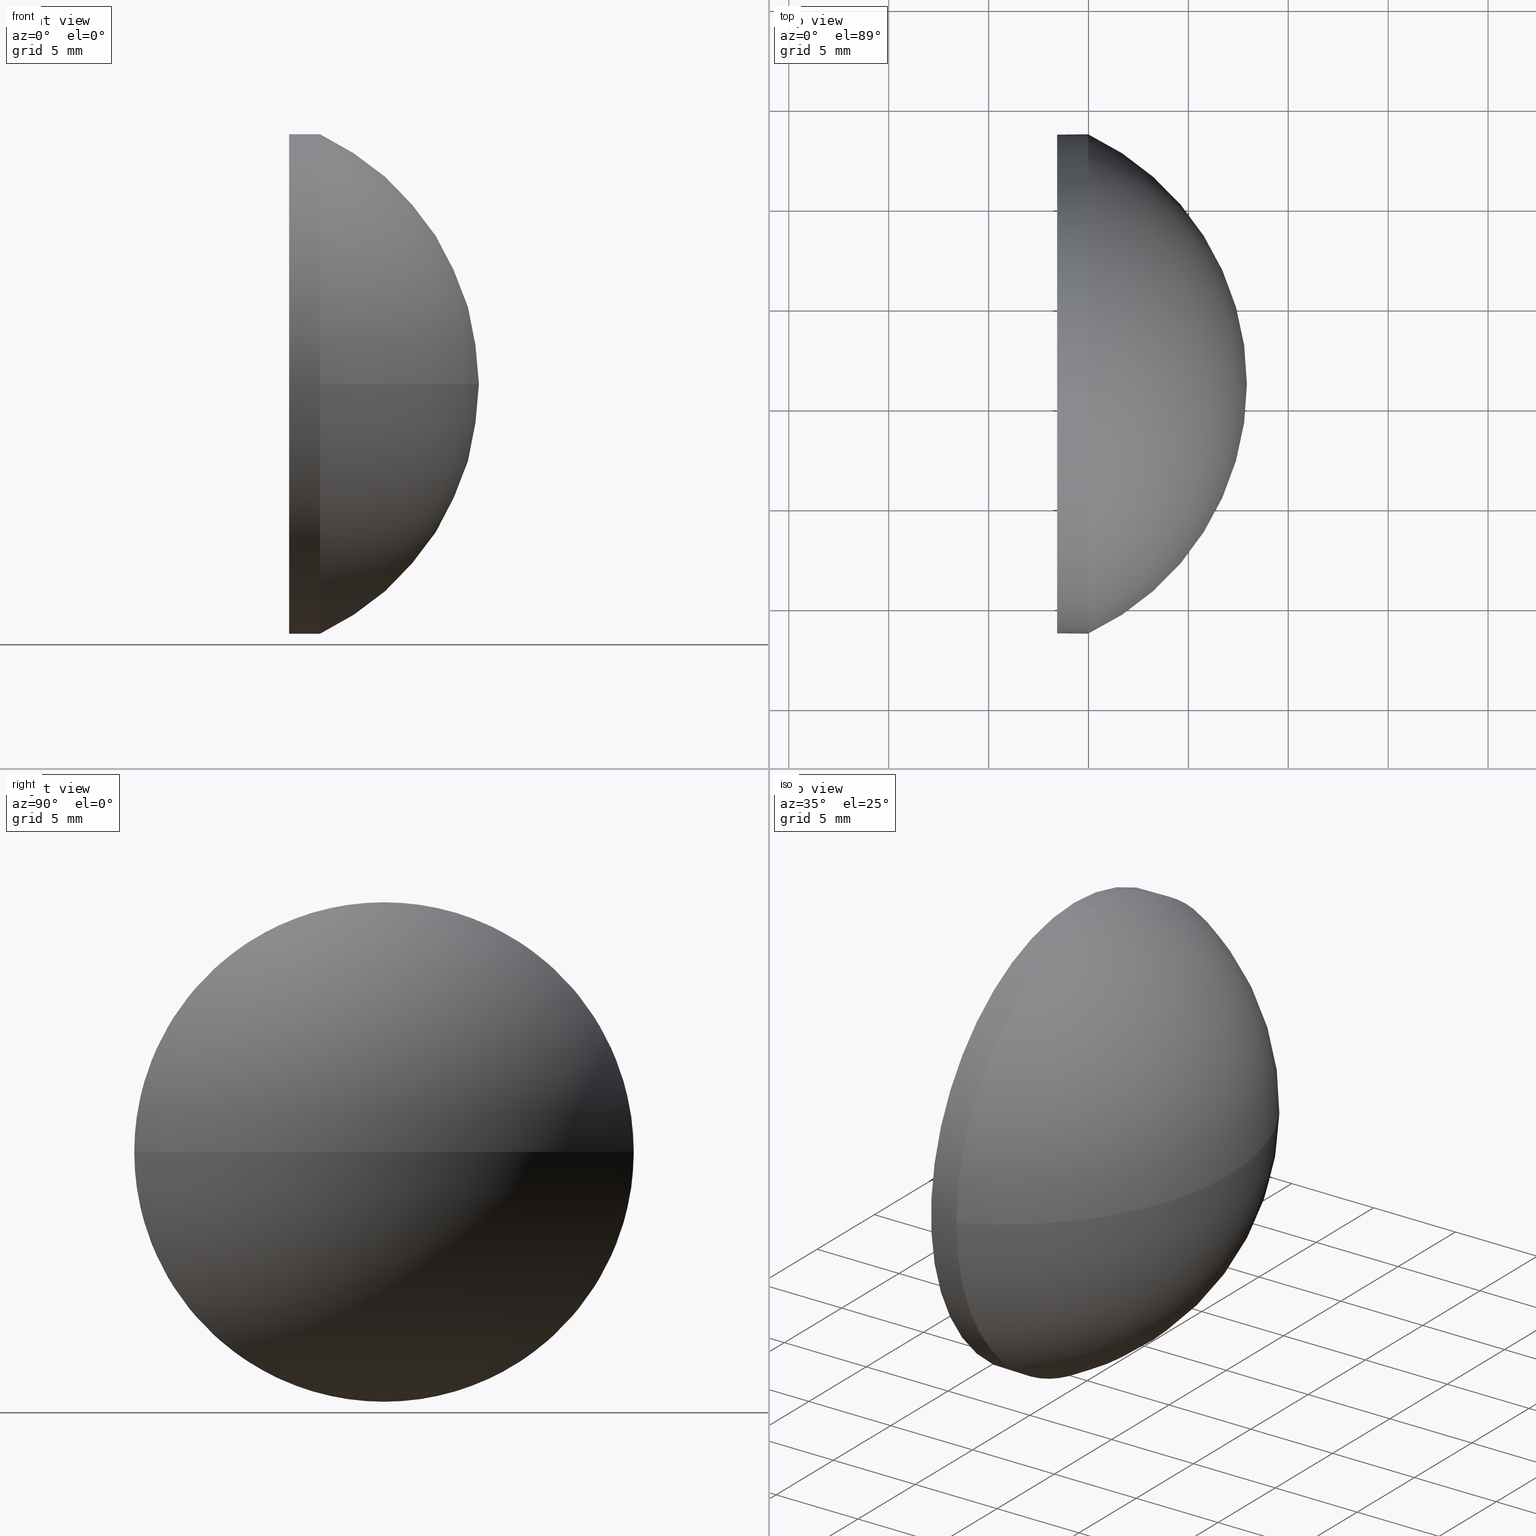
[diagram: canonical four-view strip — front | top / right | iso, engineering-drawing reading convention]
A machine part, canonical four-view strip (front | top / right | iso — engineering-drawing reading convention). The complete STEP part file that produces these views, byte-faithful:
ISO-10303-21;
HEADER;
FILE_DESCRIPTION (( 'STEP AP214' ),
    '1' );
FILE_NAME ('100209.STEP',
    '2019-05-23T06:58:59',
    ( '' ),
    ( '' ),
    'SwSTEP 2.0',
    'SolidWorks 2016',
    '' );
FILE_SCHEMA (( 'AUTOMOTIVE_DESIGN' ));
ENDSEC;

DATA;
#1 = CIRCLE ( 'NONE', #90, 13.80204402515722300 ) ;
#2 =( NAMED_UNIT ( * ) SI_UNIT ( $, .STERADIAN. ) SOLID_ANGLE_UNIT ( ) );
#3 = CARTESIAN_POINT ( 'NONE',  ( 0.0000000000000000000, 0.0000000000000000000, 0.0000000000000000000 ) ) ;
#4 = DIRECTION ( 'NONE',  ( 0.0000000000000000000, 0.0000000000000000000, 1.000000000000000000 ) ) ;
#5 = PRESENTATION_LAYER_ASSIGNMENT (  '', '', ( #23 ) ) ;
#6 = ORIENTED_EDGE ( 'NONE', *, *, #127, .F. ) ;
#7 = CARTESIAN_POINT ( 'NONE',  ( 439.1267200903624800, -33.87662092568371700, 0.0000000000000000000 ) ) ;
#8 = ADVANCED_BREP_SHAPE_REPRESENTATION ( '100209', ( #160, #163 ), #38 ) ;
#9 = DIRECTION ( 'NONE',  ( 0.0000000000000000000, 1.000000000000000000, 0.0000000000000000000 ) ) ;
#10 = VERTEX_POINT ( 'NONE', #122 ) ;
#11 = ORIENTED_EDGE ( 'NONE', *, *, #55, .F. ) ;
#12 = UNCERTAINTY_MEASURE_WITH_UNIT (LENGTH_MEASURE( 1.000000000000000100E-005 ), #86, 'distance_accuracy_value', 'NONE');
#13 =( NAMED_UNIT ( * ) PLANE_ANGLE_UNIT ( ) SI_UNIT ( $, .RADIAN. ) );
#14 = EDGE_CURVE ( 'NONE', #10, #175, #37, .T. ) ;
#15 = AXIS2_PLACEMENT_3D ( 'NONE', #68, #124, #31 ) ;
#16 = SURFACE_STYLE_USAGE ( .BOTH. , #103 ) ;
#17 = DIRECTION ( 'NONE',  ( 0.0000000000000000000, 0.0000000000000000000, 1.000000000000000000 ) ) ;
#18 = DIRECTION ( 'NONE',  ( 1.000000000000000000, 0.0000000000000000000, 0.0000000000000000000 ) ) ;
#19 = EDGE_CURVE ( 'NONE', #39, #129, #158, .T. ) ;
#20 = DIRECTION ( 'NONE',  ( -0.0000000000000000000, 0.0000000000000000000, 1.000000000000000000 ) ) ;
#21 = CARTESIAN_POINT ( 'NONE',  ( 444.9787641155197100, -33.87662092568371000, -12.50000000000000400 ) ) ;
#22 = ADVANCED_FACE ( 'NONE', ( #141 ), #29, .T. ) ;
#23 = STYLED_ITEM ( 'NONE', ( #181 ), #160 ) ;
#24 =( GEOMETRIC_REPRESENTATION_CONTEXT ( 3 ) GLOBAL_UNCERTAINTY_ASSIGNED_CONTEXT ( ( #73 ) ) GLOBAL_UNIT_ASSIGNED_CONTEXT ( ( #121, #105, #2 ) ) REPRESENTATION_CONTEXT ( 'NONE', 'WORKASPACE' ) );
#25 = PRESENTATION_STYLE_ASSIGNMENT (( #16 ) ) ;
#26 = CARTESIAN_POINT ( 'NONE',  ( 439.1267200903624800, -33.87662092568371700, 0.0000000000000000000 ) ) ;
#27 = COLOUR_RGB ( '',1.000000000000000000, 1.000000000000000000, 1.000000000000000000 ) ;
#28 = ORIENTED_EDGE ( 'NONE', *, *, #130, .F. ) ;
#29 = SPHERICAL_SURFACE ( 'NONE', #177, 13.80204402515724000 ) ;
#30 = APPLICATION_PROTOCOL_DEFINITION ( 'draft international standard', 'automotive_design', 1998, #123 ) ;
#31 = DIRECTION ( 'NONE',  ( 0.0000000000000000000, 0.0000000000000000000, 1.000000000000000000 ) ) ;
#32 = CIRCLE ( 'NONE', #15, 12.50000000000000400 ) ;
#33 = EDGE_LOOP ( 'NONE', ( #81, #89 ) ) ;
#34 = CARTESIAN_POINT ( 'NONE',  ( 443.4287641155197000, -33.87662092568371000, 0.0000000000000000000 ) ) ;
#35 = EDGE_CURVE ( 'NONE', #74, #85, #1, .T. ) ;
#36 = SPHERICAL_SURFACE ( 'NONE', #167, 13.80204402515724000 ) ;
#37 = CIRCLE ( 'NONE', #47, 12.50000000000000400 ) ;
#38 =( GEOMETRIC_REPRESENTATION_CONTEXT ( 3 ) GLOBAL_UNCERTAINTY_ASSIGNED_CONTEXT ( ( #12 ) ) GLOBAL_UNIT_ASSIGNED_CONTEXT ( ( #86, #13, #101 ) ) REPRESENTATION_CONTEXT ( 'NONE', 'WORKASPACE' ) );
#39 = VERTEX_POINT ( 'NONE', #96 ) ;
#40 = LINE ( 'NONE', #65, #100 ) ;
#41 = AXIS2_PLACEMENT_3D ( 'NONE', #139, #153, #69 ) ;
#42 =( NAMED_UNIT ( * ) SI_UNIT ( $, .STERADIAN. ) SOLID_ANGLE_UNIT ( ) );
#43 = ORIENTED_EDGE ( 'NONE', *, *, #115, .F. ) ;
#44 = VECTOR ( 'NONE', #136, 1000.000000000000000 ) ;
#45 = DIRECTION ( 'NONE',  ( 1.000000000000000000, 0.0000000000000000000, 0.0000000000000000000 ) ) ;
#46 = DIRECTION ( 'NONE',  ( -1.000000000000000000, -0.0000000000000000000, -0.0000000000000000000 ) ) ;
#47 = AXIS2_PLACEMENT_3D ( 'NONE', #133, #46, #147 ) ;
#48 = VERTEX_POINT ( 'NONE', #21 ) ;
#49 = CARTESIAN_POINT ( 'NONE',  ( 444.9787641155197100, -33.87662092568371000, 0.0000000000000000000 ) ) ;
#50 = DIRECTION ( 'NONE',  ( -1.000000000000000000, -0.0000000000000000000, -0.0000000000000000000 ) ) ;
#51 = DIRECTION ( 'NONE',  ( 0.0000000000000000000, 1.000000000000000000, 1.224646799147353200E-016 ) ) ;
#52 = CARTESIAN_POINT ( 'NONE',  ( 441.3996565370827600, -33.87662092568371000, 12.50000000000000400 ) ) ;
#53 = PRODUCT ( '100209', '100209', '', ( #92 ) ) ;
#54 =( GEOMETRIC_REPRESENTATION_CONTEXT ( 3 ) GLOBAL_UNCERTAINTY_ASSIGNED_CONTEXT ( ( #84 ) ) GLOBAL_UNIT_ASSIGNED_CONTEXT ( ( #145, #170, #42 ) ) REPRESENTATION_CONTEXT ( 'NONE', 'WORKASPACE' ) );
#55 = EDGE_CURVE ( 'NONE', #129, #10, #144, .T. ) ;
#56 = ORIENTED_EDGE ( 'NONE', *, *, #55, .T. ) ;
#57 = PRODUCT_RELATED_PRODUCT_CATEGORY ( 'part', '', ( #53 ) ) ;
#58 = SURFACE_STYLE_USAGE ( .BOTH. , #119 ) ;
#59 = DIRECTION ( 'NONE',  ( 0.0000000000000000000, 1.000000000000000000, 0.0000000000000000000 ) ) ;
#60 = EDGE_CURVE ( 'NONE', #129, #85, #156, .T. ) ;
#61 = APPLICATION_PROTOCOL_DEFINITION ( 'draft international standard', 'automotive_design', 1998, #77 ) ;
#62 = AXIS2_PLACEMENT_3D ( 'NONE', #49, #150, #67 ) ;
#63 = ORIENTED_EDGE ( 'NONE', *, *, #99, .T. ) ;
#64 = PRESENTATION_LAYER_ASSIGNMENT (  '', '', ( #116 ) ) ;
#65 = CARTESIAN_POINT ( 'NONE',  ( 441.3996565370827600, -33.87662092568371000, -12.50000000000000400 ) ) ;
#66 = FACE_OUTER_BOUND ( 'NONE', #71, .T. ) ;
#67 = DIRECTION ( 'NONE',  ( 0.0000000000000000000, 0.0000000000000000000, 1.000000000000000000 ) ) ;
#68 = CARTESIAN_POINT ( 'NONE',  ( 444.9787641155197100, -33.87662092568371000, 0.0000000000000000000 ) ) ;
#69 = DIRECTION ( 'NONE',  ( 0.0000000000000000000, 0.0000000000000000000, 1.000000000000000000 ) ) ;
#70 = CIRCLE ( 'NONE', #178, 12.50000000000000400 ) ;
#71 = EDGE_LOOP ( 'NONE', ( #114, #154, #179, #56, #6 ) ) ;
#72 = SURFACE_STYLE_FILL_AREA ( #169 ) ;
#73 = UNCERTAINTY_MEASURE_WITH_UNIT (LENGTH_MEASURE( 1.000000000000000100E-005 ), #121, 'distance_accuracy_value', 'NONE');
#74 = VERTEX_POINT ( 'NONE', #82 ) ;
#75 = PRODUCT_DEFINITION_SHAPE ( 'NONE', 'NONE',  #88 ) ;
#76 = FACE_OUTER_BOUND ( 'NONE', #182, .T. ) ;
#77 = APPLICATION_CONTEXT ( 'automotive_design' ) ;
#78 = CLOSED_SHELL ( 'NONE', ( #142, #22, #166, #138, #97 ) ) ;
#79 = AXIS2_PLACEMENT_3D ( 'NONE', #162, #152, #4 ) ;
#80 = DIRECTION ( 'NONE',  ( 0.0000000000000000000, 0.0000000000000000000, -1.000000000000000000 ) ) ;
#81 = ORIENTED_EDGE ( 'NONE', *, *, #14, .T. ) ;
#82 = CARTESIAN_POINT ( 'NONE',  ( 452.9287641155197000, -33.87662092568371700, 0.0000000000000000000 ) ) ;
#83 = PRODUCT_DEFINITION_CONTEXT ( 'detailed design', #123, 'design' ) ;
#84 = UNCERTAINTY_MEASURE_WITH_UNIT (LENGTH_MEASURE( 1.000000000000000100E-005 ), #145, 'distance_accuracy_value', 'NONE');
#85 = VERTEX_POINT ( 'NONE', #106 ) ;
#86 =( LENGTH_UNIT ( ) NAMED_UNIT ( * ) SI_UNIT ( .MILLI., .METRE. ) );
#87 = CARTESIAN_POINT ( 'NONE',  ( 443.4287641155197000, -33.87662092568371000, -12.50000000000000400 ) ) ;
#88 = PRODUCT_DEFINITION ( 'δ֪', '', #171, #83 ) ;
#89 = ORIENTED_EDGE ( 'NONE', *, *, #127, .T. ) ;
#90 = AXIS2_PLACEMENT_3D ( 'NONE', #95, #20, #110 ) ;
#91 = FILL_AREA_STYLE ('',( #172 ) ) ;
#92 = PRODUCT_CONTEXT ( 'NONE', #77, 'mechanical' ) ;
#93 = DIRECTION ( 'NONE',  ( -1.000000000000000000, -0.0000000000000000000, -0.0000000000000000000 ) ) ;
#94 = DIRECTION ( 'NONE',  ( 0.0000000000000000000, 1.224646799147353200E-016, -1.000000000000000000 ) ) ;
#95 = CARTESIAN_POINT ( 'NONE',  ( 439.1267200903624800, -33.87662092568371700, 0.0000000000000000000 ) ) ;
#96 = CARTESIAN_POINT ( 'NONE',  ( 444.9787641155197100, -46.37662092568371700, -1.530808498934190700E-015 ) ) ;
#97 = ADVANCED_FACE ( 'NONE', ( #120 ), #176, .F. ) ;
#98 = ORIENTED_EDGE ( 'NONE', *, *, #19, .F. ) ;
#99 = EDGE_CURVE ( 'NONE', #48, #175, #40, .T. ) ;
#100 = VECTOR ( 'NONE', #50, 1000.000000000000000 ) ;
#101 =( NAMED_UNIT ( * ) SI_UNIT ( $, .STERADIAN. ) SOLID_ANGLE_UNIT ( ) );
#102 = FACE_OUTER_BOUND ( 'NONE', #146, .T. ) ;
#103 = SURFACE_SIDE_STYLE ('',( #183 ) ) ;
#104 = ORIENTED_EDGE ( 'NONE', *, *, #35, .F. ) ;
#105 =( NAMED_UNIT ( * ) PLANE_ANGLE_UNIT ( ) SI_UNIT ( $, .RADIAN. ) );
#106 = CARTESIAN_POINT ( 'NONE',  ( 444.9787641155197100, -21.37662092568372100, 0.0000000000000000000 ) ) ;
#107 = ORIENTED_EDGE ( 'NONE', *, *, #14, .F. ) ;
#108 = CARTESIAN_POINT ( 'NONE',  ( 443.4287641155197000, -33.87662092568371000, 0.0000000000000000000 ) ) ;
#109 = CARTESIAN_POINT ( 'NONE',  ( 444.9787641155197100, -33.87662092568371000, 12.50000000000000400 ) ) ;
#110 = DIRECTION ( 'NONE',  ( 1.000000000000000000, 0.0000000000000000000, 0.0000000000000000000 ) ) ;
#111 = ORIENTED_EDGE ( 'NONE', *, *, #60, .F. ) ;
#112 = AXIS2_PLACEMENT_3D ( 'NONE', #126, #94, #51 ) ;
#113 = CIRCLE ( 'NONE', #112, 13.80204402515724000 ) ;
#114 = ORIENTED_EDGE ( 'NONE', *, *, #99, .F. ) ;
#115 = EDGE_CURVE ( 'NONE', #74, #39, #113, .T. ) ;
#116 = STYLED_ITEM ( 'NONE', ( #25 ), #8 ) ;
#117 = ORIENTED_EDGE ( 'NONE', *, *, #128, .F. ) ;
#118 = SHAPE_DEFINITION_REPRESENTATION ( #75, #8 ) ;
#119 = SURFACE_SIDE_STYLE ('',( #72 ) ) ;
#120 = FACE_OUTER_BOUND ( 'NONE', #33, .T. ) ;
#121 =( LENGTH_UNIT ( ) NAMED_UNIT ( * ) SI_UNIT ( .MILLI., .METRE. ) );
#122 = CARTESIAN_POINT ( 'NONE',  ( 443.4287641155197000, -33.87662092568371000, 12.50000000000000400 ) ) ;
#123 = APPLICATION_CONTEXT ( 'automotive_design' ) ;
#124 = DIRECTION ( 'NONE',  ( -1.000000000000000000, -0.0000000000000000000, -0.0000000000000000000 ) ) ;
#125 = DIRECTION ( 'NONE',  ( 0.0000000000000000000, 0.0000000000000000000, 1.000000000000000000 ) ) ;
#126 = CARTESIAN_POINT ( 'NONE',  ( 439.1267200903624800, -33.87662092568371700, 0.0000000000000000000 ) ) ;
#127 = EDGE_CURVE ( 'NONE', #175, #10, #70, .T. ) ;
#128 = EDGE_CURVE ( 'NONE', #85, #48, #32, .T. ) ;
#129 = VERTEX_POINT ( 'NONE', #109 ) ;
#130 = EDGE_CURVE ( 'NONE', #48, #39, #174, .T. ) ;
#131 = DIRECTION ( 'NONE',  ( -0.0000000000000000000, 0.0000000000000000000, -1.000000000000000000 ) ) ;
#132 = DIRECTION ( 'NONE',  ( 0.0000000000000000000, 0.0000000000000000000, 1.000000000000000000 ) ) ;
#133 = CARTESIAN_POINT ( 'NONE',  ( 443.4287641155197000, -33.87662092568371000, 0.0000000000000000000 ) ) ;
#134 = CARTESIAN_POINT ( 'NONE',  ( 441.3996565370827600, -33.87662092568371000, 0.0000000000000000000 ) ) ;
#135 = DIRECTION ( 'NONE',  ( -1.000000000000000000, -0.0000000000000000000, -0.0000000000000000000 ) ) ;
#136 = DIRECTION ( 'NONE',  ( -1.000000000000000000, -0.0000000000000000000, -0.0000000000000000000 ) ) ;
#137 = DIRECTION ( 'NONE',  ( -1.000000000000000000, -0.0000000000000000000, -0.0000000000000000000 ) ) ;
#138 = ADVANCED_FACE ( 'NONE', ( #66 ), #143, .T. ) ;
#139 = CARTESIAN_POINT ( 'NONE',  ( 444.9787641155197100, -33.87662092568371000, 0.0000000000000000000 ) ) ;
#140 = AXIS2_PLACEMENT_3D ( 'NONE', #34, #18, #80 ) ;
#141 = FACE_OUTER_BOUND ( 'NONE', #161, .T. ) ;
#142 = ADVANCED_FACE ( 'NONE', ( #102 ), #184, .T. ) ;
#143 = CYLINDRICAL_SURFACE ( 'NONE', #159, 12.50000000000000400 ) ;
#144 = LINE ( 'NONE', #52, #44 ) ;
#145 =( LENGTH_UNIT ( ) NAMED_UNIT ( * ) SI_UNIT ( .MILLI., .METRE. ) );
#146 = EDGE_LOOP ( 'NONE', ( #186, #63, #107, #11, #151 ) ) ;
#147 = DIRECTION ( 'NONE',  ( 0.0000000000000000000, 0.0000000000000000000, 1.000000000000000000 ) ) ;
#148 = COLOUR_RGB ( '',1.000000000000000000, 1.000000000000000000, 1.000000000000000000 ) ;
#149 = DIRECTION ( 'NONE',  ( 0.0000000000000000000, 0.0000000000000000000, 1.000000000000000000 ) ) ;
#150 = DIRECTION ( 'NONE',  ( -1.000000000000000000, -0.0000000000000000000, -0.0000000000000000000 ) ) ;
#151 = ORIENTED_EDGE ( 'NONE', *, *, #60, .T. ) ;
#152 = DIRECTION ( 'NONE',  ( -1.000000000000000000, -0.0000000000000000000, -0.0000000000000000000 ) ) ;
#153 = DIRECTION ( 'NONE',  ( -1.000000000000000000, -0.0000000000000000000, -0.0000000000000000000 ) ) ;
#154 = ORIENTED_EDGE ( 'NONE', *, *, #130, .T. ) ;
#155 = MECHANICAL_DESIGN_GEOMETRIC_PRESENTATION_REPRESENTATION (  '', ( #116 ), #24 ) ;
#156 = CIRCLE ( 'NONE', #168, 12.50000000000000400 ) ;
#157 = MECHANICAL_DESIGN_GEOMETRIC_PRESENTATION_REPRESENTATION (  '', ( #23 ), #54 ) ;
#158 = CIRCLE ( 'NONE', #41, 12.50000000000000400 ) ;
#159 = AXIS2_PLACEMENT_3D ( 'NONE', #134, #135, #149 ) ;
#160 = MANIFOLD_SOLID_BREP ( '��ת1', #78 ) ;
#161 = EDGE_LOOP ( 'NONE', ( #104, #173, #28, #117 ) ) ;
#162 = CARTESIAN_POINT ( 'NONE',  ( 441.3996565370827600, -33.87662092568371000, 0.0000000000000000000 ) ) ;
#163 = AXIS2_PLACEMENT_3D ( 'NONE', #3, #132, #45 ) ;
#164 = ORIENTED_EDGE ( 'NONE', *, *, #35, .T. ) ;
#165 = CARTESIAN_POINT ( 'NONE',  ( 444.9787641155197100, -33.87662092568371000, 0.0000000000000000000 ) ) ;
#166 = ADVANCED_FACE ( 'NONE', ( #76 ), #36, .T. ) ;
#167 = AXIS2_PLACEMENT_3D ( 'NONE', #26, #131, #59 ) ;
#168 = AXIS2_PLACEMENT_3D ( 'NONE', #165, #137, #125 ) ;
#169 = FILL_AREA_STYLE ('',( #185 ) ) ;
#170 =( NAMED_UNIT ( * ) PLANE_ANGLE_UNIT ( ) SI_UNIT ( $, .RADIAN. ) );
#171 = PRODUCT_DEFINITION_FORMATION_WITH_SPECIFIED_SOURCE ( '�κ�', '', #53, .NOT_KNOWN. ) ;
#172 = FILL_AREA_STYLE_COLOUR ( '', #27 ) ;
#173 = ORIENTED_EDGE ( 'NONE', *, *, #115, .T. ) ;
#174 = CIRCLE ( 'NONE', #62, 12.50000000000000400 ) ;
#175 = VERTEX_POINT ( 'NONE', #87 ) ;
#176 = PLANE ( 'NONE',  #140 ) ;
#177 = AXIS2_PLACEMENT_3D ( 'NONE', #7, #180, #9 ) ;
#178 = AXIS2_PLACEMENT_3D ( 'NONE', #108, #93, #17 ) ;
#179 = ORIENTED_EDGE ( 'NONE', *, *, #19, .T. ) ;
#180 = DIRECTION ( 'NONE',  ( -0.0000000000000000000, 0.0000000000000000000, -1.000000000000000000 ) ) ;
#181 = PRESENTATION_STYLE_ASSIGNMENT (( #58 ) ) ;
#182 = EDGE_LOOP ( 'NONE', ( #43, #164, #111, #98 ) ) ;
#183 = SURFACE_STYLE_FILL_AREA ( #91 ) ;
#184 = CYLINDRICAL_SURFACE ( 'NONE', #79, 12.50000000000000400 ) ;
#185 = FILL_AREA_STYLE_COLOUR ( '', #148 ) ;
#186 = ORIENTED_EDGE ( 'NONE', *, *, #128, .T. ) ;
ENDSEC;
END-ISO-10303-21;
